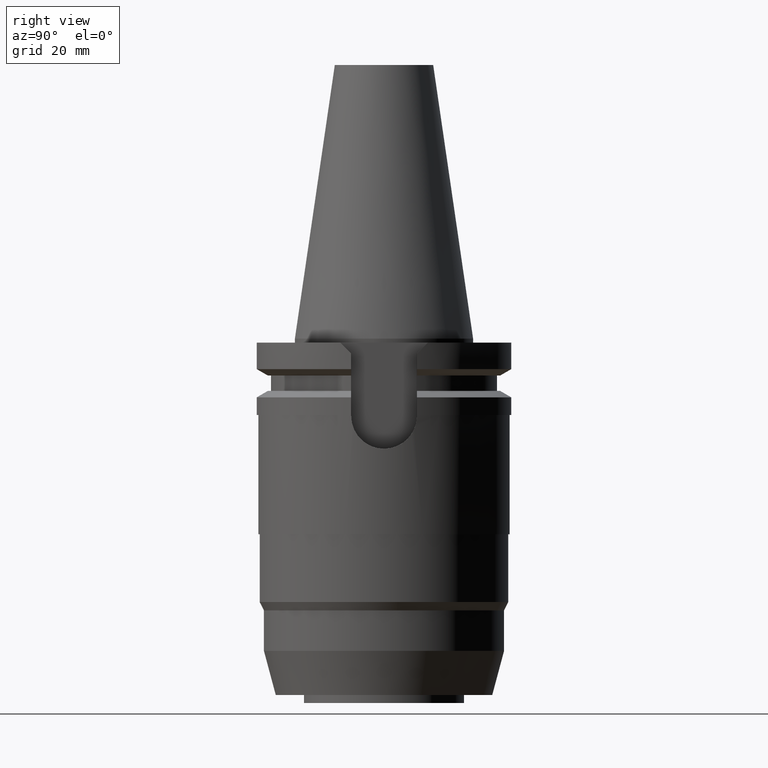
[diagram: clean part render]
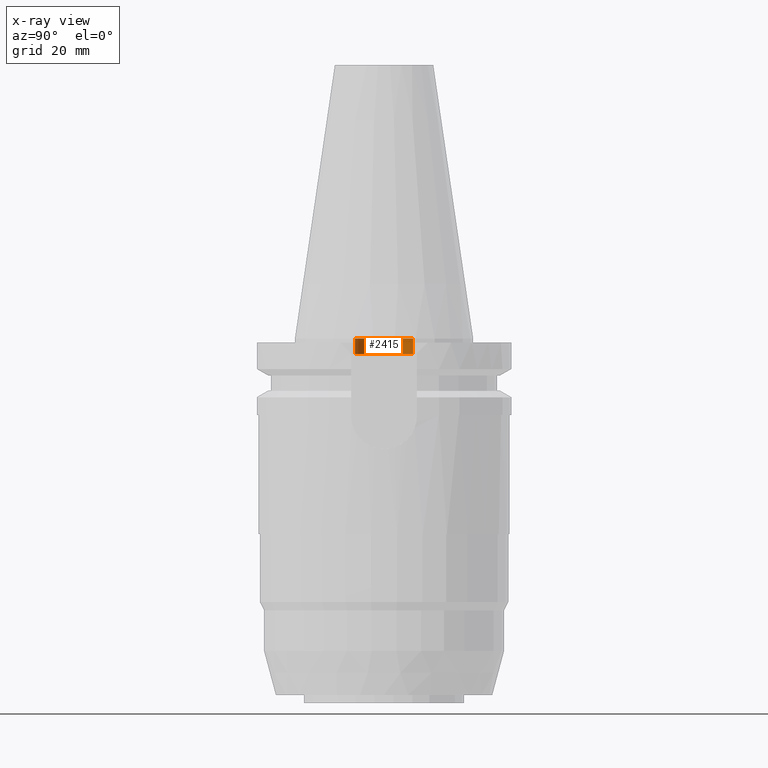
[diagram: x-ray — body ghosted, one internal face saturated and labeled with its STEP entity id]
A machine part, right view, then the same camera in x-ray: the body is ghosted and one INTERNAL B-rep face — a face not visible from any outside direction — is saturated and labeled: STEP entity #2415.
In plain terms, the highlighted cylindrical surface (edge-blend (fillet) strip) has radius 7.25 mm, axis along (0, 0, 1).
Its self-contained STEP definition (entity closure, byte-faithful):
#1042=CARTESIAN_POINT('',(0.E0,0.E0,-3.9E0));
#1043=DIRECTION('',(0.E0,0.E0,-1.E0));
#1044=DIRECTION('',(0.E0,-1.E0,0.E0));
#1045=AXIS2_PLACEMENT_3D('',#1042,#1043,#1044);
#1058=DIRECTION('',(0.E0,0.E0,1.E0));
#1059=VECTOR('',#1058,3.9E0);
#1060=CARTESIAN_POINT('',(0.E0,-7.25E0,-3.9E0));
#1061=LINE('',#1060,#1059);
#1065=CARTESIAN_POINT('',(0.E0,0.E0,5.684341886081E-14));
#1066=DIRECTION('',(0.E0,0.E0,-1.E0));
#1067=DIRECTION('',(0.E0,-1.E0,0.E0));
#1068=AXIS2_PLACEMENT_3D('',#1065,#1066,#1067);
#1073=DIRECTION('',(0.E0,0.E0,1.E0));
#1074=VECTOR('',#1073,3.9E0);
#1075=CARTESIAN_POINT('',(0.E0,7.25E0,-3.9E0));
#1076=LINE('',#1075,#1074);
#1583=CARTESIAN_POINT('',(0.E0,-7.25E0,-3.9E0));
#1584=CARTESIAN_POINT('',(0.E0,7.25E0,-3.9E0));
#1585=VERTEX_POINT('',#1583);
#1586=VERTEX_POINT('',#1584);
#1587=CARTESIAN_POINT('',(0.E0,7.25E0,5.684341886081E-14));
#1588=VERTEX_POINT('',#1587);
#1589=CARTESIAN_POINT('',(0.E0,-7.25E0,5.684341886081E-14));
#1590=VERTEX_POINT('',#1589);
#2401=CARTESIAN_POINT('',(0.E0,0.E0,-9.88575E1));
#2402=DIRECTION('',(0.E0,0.E0,1.E0));
#2403=DIRECTION('',(0.E0,1.E0,0.E0));
#2404=AXIS2_PLACEMENT_3D('',#2401,#2402,#2403);
#2405=CYLINDRICAL_SURFACE('',#2404,7.25E0);
#2407=ORIENTED_EDGE('',*,*,#2406,.F.);
#2408=ORIENTED_EDGE('',*,*,#2394,.F.);
#2410=ORIENTED_EDGE('',*,*,#2409,.T.);
#2412=ORIENTED_EDGE('',*,*,#2411,.T.);
#2413=EDGE_LOOP('',(#2407,#2408,#2410,#2412));
#2414=FACE_OUTER_BOUND('',#2413,.F.);
#1046=CIRCLE('',#1045,7.25E0);
#1069=CIRCLE('',#1068,7.25E0);
#2394=EDGE_CURVE('',#1585,#1586,#1046,.T.);
#2406=EDGE_CURVE('',#1586,#1588,#1076,.T.);
#2409=EDGE_CURVE('',#1585,#1590,#1061,.T.);
#2411=EDGE_CURVE('',#1590,#1588,#1069,.T.);
#2415=ADVANCED_FACE('',(#2414),#2405,.F.);